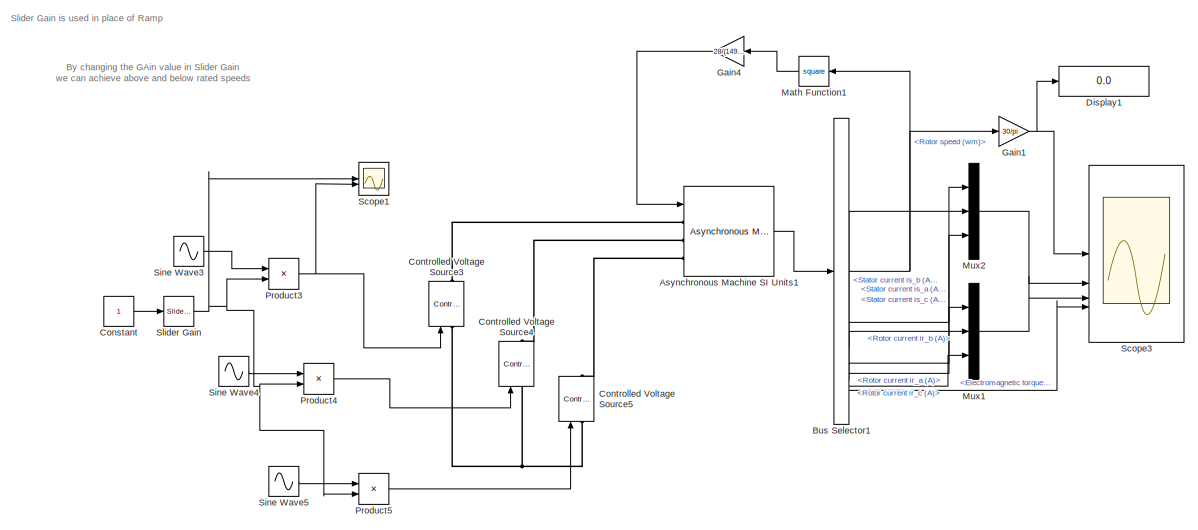
[diagram: root canvas - part 1/2, right side, full height]
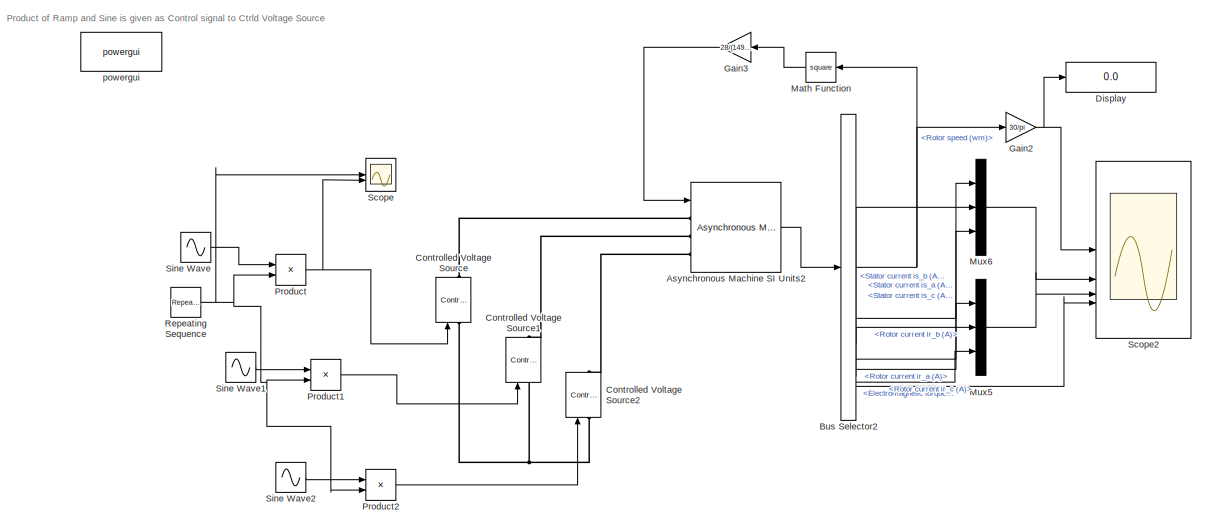
[diagram: root canvas - part 2/2, left side, full height]
MODEL slx_66bb82a3e30c
KIND model
CONFIG AbsTol = auto
CONFIG EnableMultiTasking = off
CONFIG FixedStep = auto
CONFIG MaxStep = 1e-4
CONFIG MinStep = auto
CONFIG RelTol = 1e-3
CONFIG SampleTimeConstraint = Unconstrained
CONFIG SolverName = ode23tb
CONFIG StartTime = 0.0
CONFIG StopTime = 10.0
BLOCK [Reference] Asynchronous Machine SI Units1  REF=spsAsynchronousMachineSIUnitsLib/Asynchronous Machine
SI Units
  LibrarySourceBlock = sps_lib/Electrical Machines/Asynchronous Machine\nSI Units
  SourceBlock = spsAsynchronousMachineSIUnitsLib/Asynchronous Machine\nSI Units
  SourceType = Asynchronous Machine
BLOCK [Reference] Asynchronous Machine SI Units2  REF=spsAsynchronousMachineSIUnitsLib/Asynchronous Machine
SI Units
  LibrarySourceBlock = sps_lib/Electrical Machines/Asynchronous Machine\nSI Units
  SourceBlock = spsAsynchronousMachineSIUnitsLib/Asynchronous Machine\nSI Units
  SourceType = Asynchronous Machine
BLOCK [BusSelector] Bus Selector1
  OutputSignals = Mechanical.Rotor speed (wm),Stator measurements.Stator current is_a (A),Stator measurements.Stator current is_b (A),Stator measurements.Stator current is_c (A),Rotor measurements.Rotor current ir_a (A),Rotor measurements.Rotor current ir_b (A),Rotor measurements.Rotor current ir_c (A),Mechanical.Electromagnetic torque Te (N*m)
BLOCK [BusSelector] Bus Selector2
  OutputSignals = Mechanical.Rotor speed (wm),Stator measurements.Stator current is_a (A),Stator measurements.Stator current is_b (A),Stator measurements.Stator current is_c (A),Rotor measurements.Rotor current ir_a (A),Rotor measurements.Rotor current ir_b (A),Rotor measurements.Rotor current ir_c (A),Mechanical.Electromagnetic torque Te (N*m)
BLOCK [Constant] Constant
BLOCK [Reference] Controlled Voltage Source  REF=spsControlledVoltageSourceLib/Controlled Voltage Source
  LibrarySourceBlock = sps_lib/Sources/Controlled Voltage Source
  SourceBlock = spsControlledVoltageSourceLib/Controlled Voltage Source
  SourceType = Controlled Voltage Source
BLOCK [Reference] Controlled Voltage Source1  REF=spsControlledVoltageSourceLib/Controlled Voltage Source
  LibrarySourceBlock = sps_lib/Sources/Controlled Voltage Source
  SourceBlock = spsControlledVoltageSourceLib/Controlled Voltage Source
  SourceType = Controlled Voltage Source
BLOCK [Reference] Controlled Voltage Source2  REF=spsControlledVoltageSourceLib/Controlled Voltage Source
  LibrarySourceBlock = sps_lib/Sources/Controlled Voltage Source
  SourceBlock = spsControlledVoltageSourceLib/Controlled Voltage Source
  SourceType = Controlled Voltage Source
BLOCK [Reference] Controlled Voltage Source3  REF=spsControlledVoltageSourceLib/Controlled Voltage Source
  LibrarySourceBlock = sps_lib/Sources/Controlled Voltage Source
  SourceBlock = spsControlledVoltageSourceLib/Controlled Voltage Source
  SourceType = Controlled Voltage Source
BLOCK [Reference] Controlled Voltage Source4  REF=spsControlledVoltageSourceLib/Controlled Voltage Source
  LibrarySourceBlock = sps_lib/Sources/Controlled Voltage Source
  SourceBlock = spsControlledVoltageSourceLib/Controlled Voltage Source
  SourceType = Controlled Voltage Source
BLOCK [Reference] Controlled Voltage Source5  REF=spsControlledVoltageSourceLib/Controlled Voltage Source
  LibrarySourceBlock = sps_lib/Sources/Controlled Voltage Source
  SourceBlock = spsControlledVoltageSourceLib/Controlled Voltage Source
  SourceType = Controlled Voltage Source
BLOCK [Display] Display
  Decimation = 1
BLOCK [Display] Display1
  Decimation = 1
BLOCK [Gain] Gain1
  Gain = 30/pi
BLOCK [Gain] Gain2
  Gain = 30/pi
BLOCK [Gain] Gain3
  Gain = 28/(149)^2
  NameLocation = top
BLOCK [Gain] Gain4
  Gain = 28/(149)^2
  NameLocation = top
BLOCK [Math] Math Function
  NameLocation = top
  Operator = square
BLOCK [Math] Math Function1
  NameLocation = top
  Operator = square
BLOCK [Mux] Mux1
  DisplayOption = bar
  Inputs = 3
BLOCK [Mux] Mux2
  DisplayOption = bar
  Inputs = 3
BLOCK [Mux] Mux5
  DisplayOption = bar
  Inputs = 3
BLOCK [Mux] Mux6
  DisplayOption = bar
  Inputs = 3
BLOCK [Product] Product
BLOCK [Product] Product1
BLOCK [Product] Product2
BLOCK [Product] Product3
BLOCK [Product] Product4
BLOCK [Product] Product5
BLOCK [Reference] Repeating Sequence  REF=simulink/Sources/Repeating
Sequence
  SourceBlock = simulink/Sources/Repeating\nSequence
  SourceType = Repeating table
BLOCK [Scope] Scope
  Floating = off
  NumInputPorts = 2
  ScopeSpecificationString = Simulink.scopes.TimeScopeBlockCfg('CurrentConfiguration', extmgr.ConfigurationSet(extmgr.Configuration('Core','General UI',true),extmgr.Configuration('Core','Source UI',true),extmgr.Configuration('Sources','WiredSimulink',true),extmgr.Configuration('Visuals','Time Domain',true,'SerializedDisplays',{struct('MinYLimReal','-0.125','MaxYLimReal','1.125','YLabelReal','','MinYLimMag','0.00000','MaxYLimM...<+2374ch>
BLOCK [Scope] Scope1
  Floating = off
  NumInputPorts = 2
  ScopeSpecificationString = Simulink.scopes.TimeScopeBlockCfg('CurrentConfiguration', extmgr.ConfigurationSet(extmgr.Configuration('Core','General UI',true),extmgr.Configuration('Core','Source UI',true),extmgr.Configuration('Sources','WiredSimulink',true,'DataLoggingVariableName','ScopeData1'),extmgr.Configuration('Visuals','Time Domain',true,'SerializedDisplays',{struct('MinYLimReal','-0.125','MaxYLimReal','1.125','YLabelRe...<+2413ch>
BLOCK [Scope] Scope2
  Floating = off
  NumInputPorts = 4
  ScopeSpecificationString = Simulink.scopes.TimeScopeBlockCfg('CurrentConfiguration', extmgr.ConfigurationSet(extmgr.Configuration('Core','General UI',true),extmgr.Configuration('Core','Source UI',true),extmgr.Configuration('Sources','WiredSimulink',true,'DataLoggingVariableName','ScopeData2'),extmgr.Configuration('Visuals','Time Domain',true,'SerializedDisplays',{struct('MinYLimReal','764.99278','MaxYLimReal','1581.66747','...<+4009ch>
BLOCK [Scope] Scope3
  Floating = off
  NumInputPorts = 4
  ScopeSpecificationString = Simulink.scopes.TimeScopeBlockCfg('CurrentConfiguration', extmgr.ConfigurationSet(extmgr.Configuration('Core','General UI',true),extmgr.Configuration('Core','Source UI',true),extmgr.Configuration('Sources','WiredSimulink',true,'DataLoggingVariableName','ScopeData3'),extmgr.Configuration('Visuals','Time Domain',true,'SerializedDisplays',{struct('MinYLimReal','769.37138','MaxYLimReal','2009.08947','...<+4014ch>
BLOCK [Sin] Sine Wave
  Amplitude = 327
  Frequency = 50*2*pi
  SampleTime = 0
BLOCK [Sin] Sine Wave1
  Amplitude = 327
  Frequency = 50*2*pi
  Phase = -120*(pi/180)
  SampleTime = 0
BLOCK [Sin] Sine Wave2
  Amplitude = 327
  Frequency = 50*2*pi
  Phase = 120*(pi/180)
  SampleTime = 0
BLOCK [Sin] Sine Wave3
  Amplitude = 327
  Frequency = 50*2*pi
  SampleTime = 0
BLOCK [Sin] Sine Wave4
  Amplitude = 327
  Frequency = 50*2*pi
  Phase = -120*(pi/180)
  SampleTime = 0
BLOCK [Sin] Sine Wave5
  Amplitude = 327
  Frequency = 50*2*pi
  Phase = 120*(pi/180)
  SampleTime = 0
BLOCK [Reference] Slider Gain  REF=simulink/Math
Operations/Slider
Gain
  SourceBlock = simulink/Math\nOperations/Slider\nGain
  SourceType = Slider Gain
BLOCK [Reference] powergui  REF=sps_lib/powergui
  LibrarySourceBlock = sps_lib/powergui
  Priority = 1
  SourceBlock = sps_lib/powergui
  SourceType = PSB option menu block
ANNOTATION (root): By changing the GAin value in Slider Gain we can achieve above and below rated speeds
ANNOTATION (root): Product of Ramp and Sine is given as Control signal to Ctrld Voltage Source
ANNOTATION (root): Slider Gain is used in place of Ramp
LINE Asynchronous Machine SI Units1:1 -> Bus Selector1:1
LINE Asynchronous Machine SI Units2:1 -> Bus Selector2:1
NET Bus Selector1:1 -> Gain1:1, Math Function1:1
LINE Bus Selector1:2 -> Mux2:1
LINE Bus Selector1:3 -> Mux2:2
LINE Bus Selector1:4 -> Mux2:3
LINE Bus Selector1:5 -> Mux1:1
LINE Bus Selector1:6 -> Mux1:2
LINE Bus Selector1:7 -> Mux1:3
LINE Bus Selector1:8 -> Scope3:4
NET Bus Selector2:1 -> Gain2:1, Math Function:1
LINE Bus Selector2:2 -> Mux6:1
LINE Bus Selector2:3 -> Mux6:2
LINE Bus Selector2:4 -> Mux6:3
LINE Bus Selector2:5 -> Mux5:1
LINE Bus Selector2:6 -> Mux5:2
LINE Bus Selector2:7 -> Mux5:3
LINE Bus Selector2:8 -> Scope2:4
LINE Constant:1 -> Slider Gain:1
NET Gain1:1 -> Display1:1, Scope3:1
NET Gain2:1 -> Display:1, Scope2:1
LINE Gain3:1 -> Asynchronous Machine SI Units2:1
LINE Gain4:1 -> Asynchronous Machine SI Units1:1
LINE Math Function1:1 -> Gain4:1
LINE Math Function:1 -> Gain3:1
LINE Mux1:1 -> Scope3:3
LINE Mux2:1 -> Scope3:2
LINE Mux5:1 -> Scope2:3
LINE Mux6:1 -> Scope2:2
LINE Product1:1 -> Controlled Voltage Source1:1
LINE Product2:1 -> Controlled Voltage Source2:1
NET Product3:1 -> Controlled Voltage Source3:1, Scope1:2
LINE Product4:1 -> Controlled Voltage Source4:1
LINE Product5:1 -> Controlled Voltage Source5:1
NET Product:1 -> Controlled Voltage Source:1, Scope:2
NET Repeating Sequence:1 -> Product1:2, Product2:2, Product:2, Scope:1
LINE Sine Wave1:1 -> Product1:1
LINE Sine Wave2:1 -> Product2:1
LINE Sine Wave3:1 -> Product3:1
LINE Sine Wave4:1 -> Product4:1
LINE Sine Wave5:1 -> Product5:1
LINE Sine Wave:1 -> Product:1
NET Slider Gain:1 -> Product3:2, Product4:2, Product5:2, Scope1:1
PLINE Asynchronous Machine SI Units1:LConn1 -- Controlled Voltage Source3:RConn1
PLINE Asynchronous Machine SI Units1:LConn2 -- Controlled Voltage Source4:RConn1
PLINE Asynchronous Machine SI Units1:LConn3 -- Controlled Voltage Source5:RConn1
PLINE Asynchronous Machine SI Units2:LConn1 -- Controlled Voltage Source:RConn1
PLINE Asynchronous Machine SI Units2:LConn2 -- Controlled Voltage Source1:RConn1
PLINE Asynchronous Machine SI Units2:LConn3 -- Controlled Voltage Source2:RConn1
PNET net1: Controlled Voltage Source1:LConn1 -- Controlled Voltage Source2:LConn1 -- Controlled Voltage Source:LConn1
PNET net2: Controlled Voltage Source3:LConn1 -- Controlled Voltage Source4:LConn1 -- Controlled Voltage Source5:LConn1
note: NET lines group one-source signal fan-out (src -> all destinations, sorted); 1:1 wires keep LINE; PNET lines group multi-terminal physical nets as a canonical sorted terminal list (undirected conserving connections); 2-terminal nets keep the pairwise PLINE form
